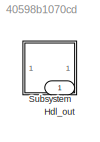
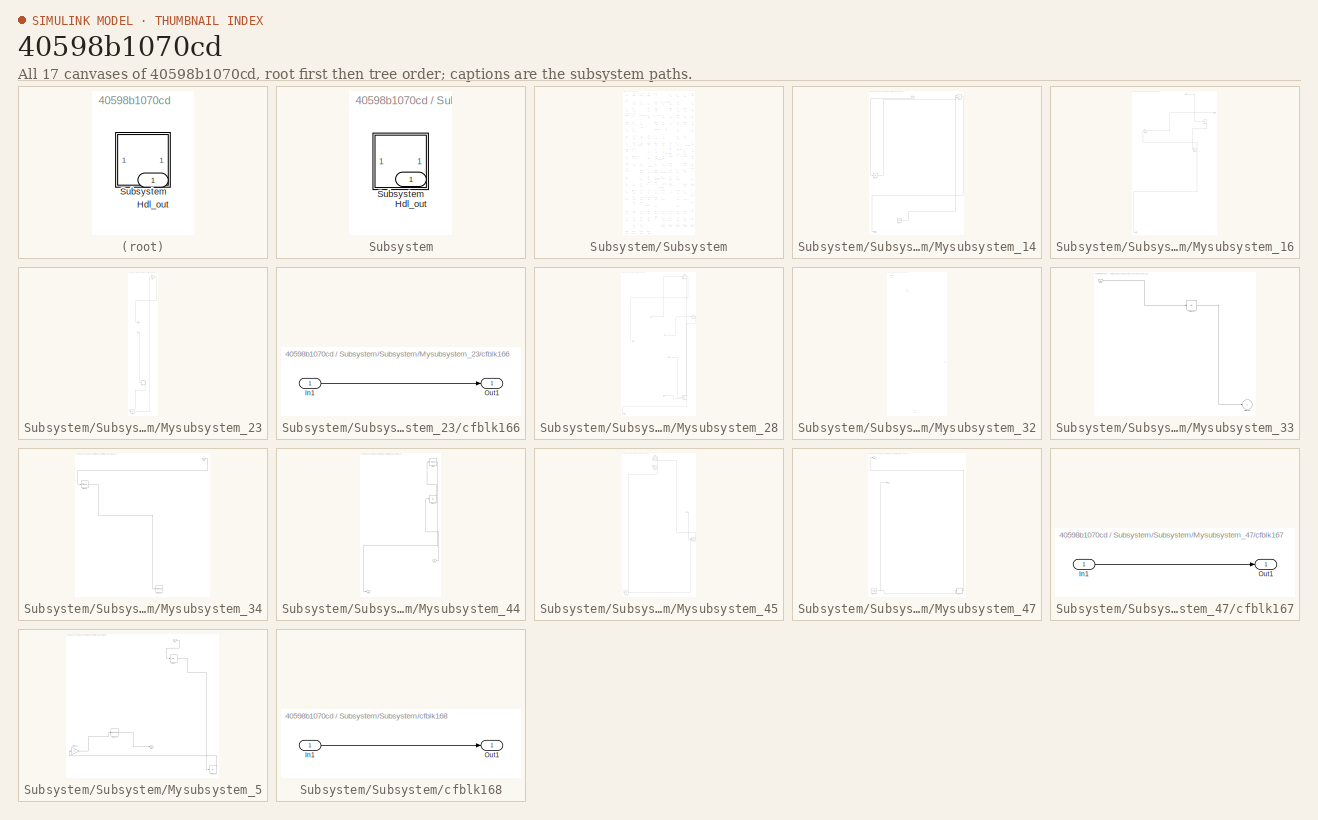
[diagram: thumbnail index - all 17 canvases of the model, root first then tree order]
MODEL slx_40598b1070cd
KIND model
CONFIG AbsTol = auto
CONFIG EnableMultiTasking = off
CONFIG FixedStep = auto
CONFIG MaxStep = auto
CONFIG MinStep = auto
CONFIG RelTol = 1e-3
CONFIG SampleTimeConstraint = Unconstrained
CONFIG SolverName = VariableStepAuto
CONFIG StartTime = 0.0
CONFIG StopTime = 10.0
BLOCK [Outport] Hdl_out
  OutDataTypeStr = uint8
BLOCK [SubSystem] Subsystem
BLOCK [Outport] Subsystem/Hdl_out
  OutDataTypeStr = uint8
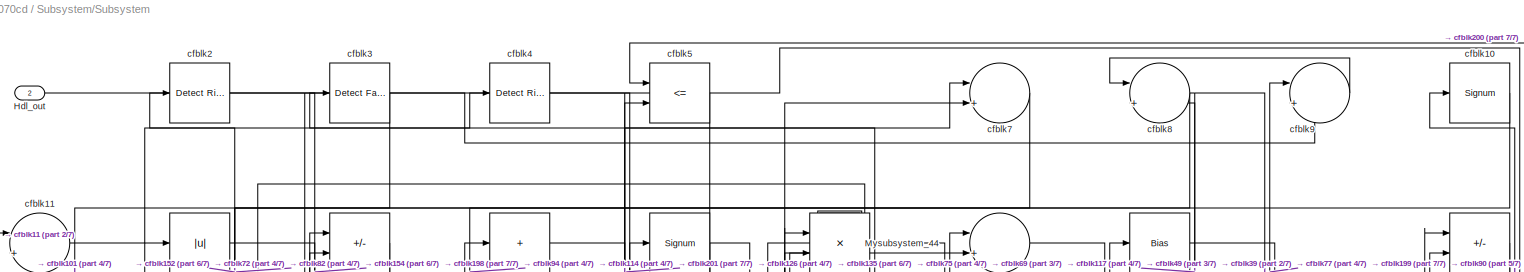
[diagram: Subsystem/Subsystem - part 1/7, full width, top band]
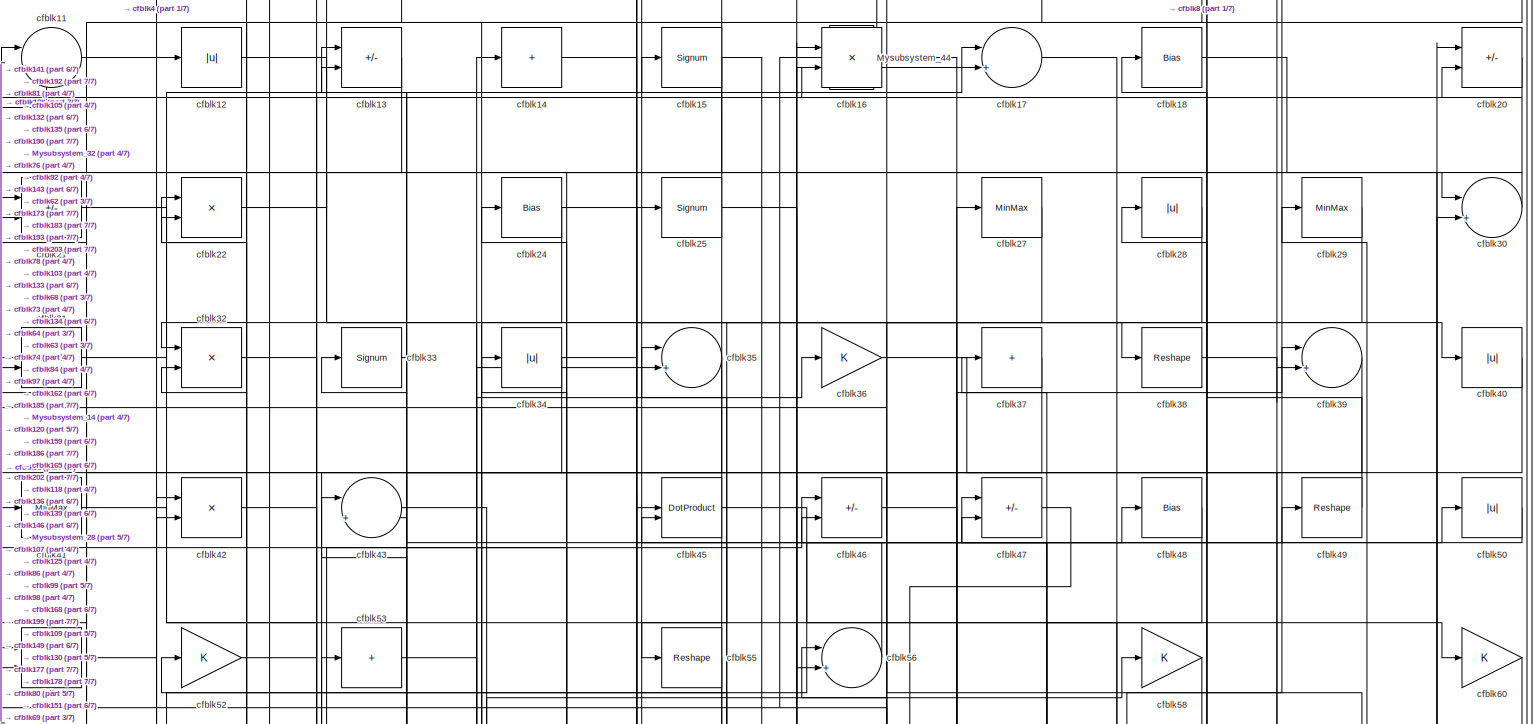
[diagram: Subsystem/Subsystem - part 2/7, full width, top band]
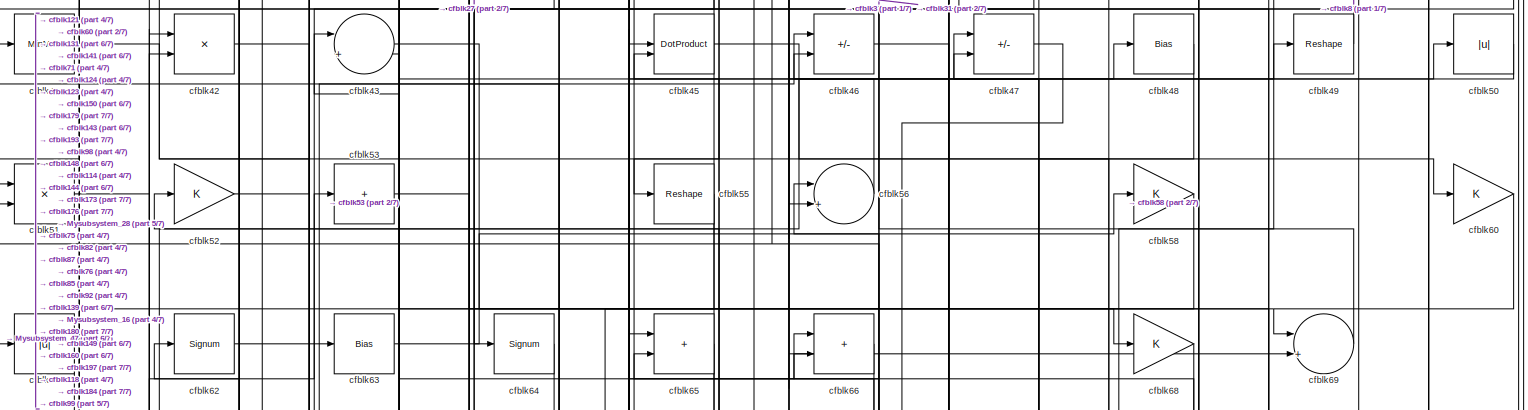
[diagram: Subsystem/Subsystem - part 3/7, full width, top band]
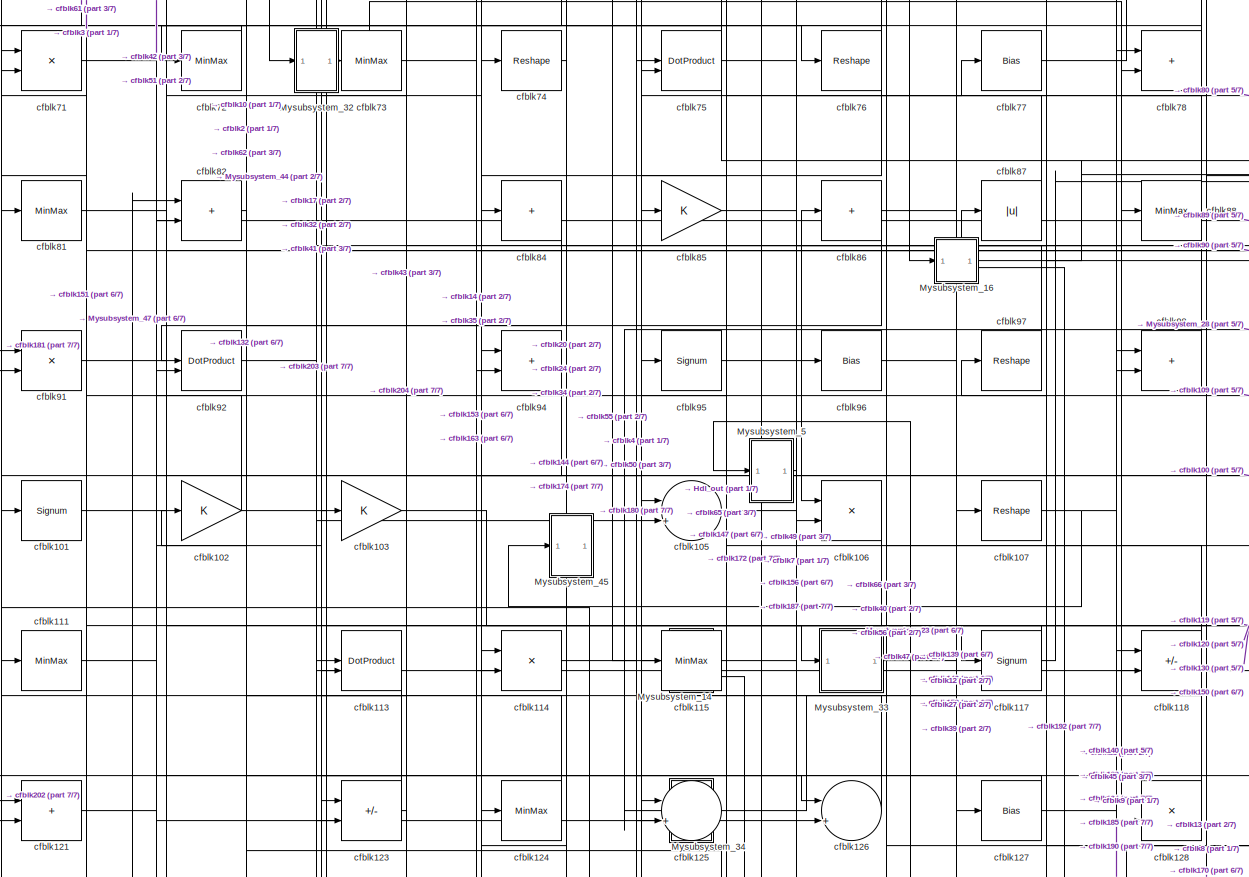
[diagram: Subsystem/Subsystem - part 4/7, full width, middle band]
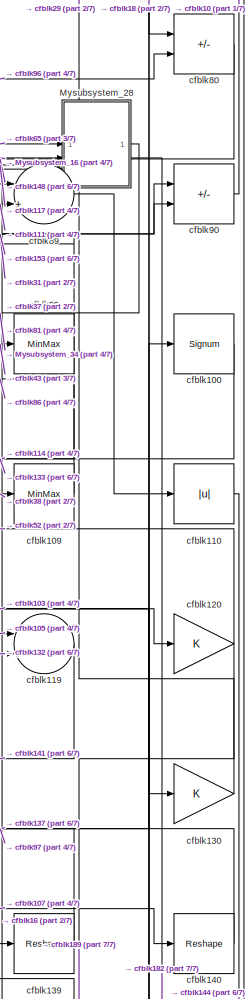
[diagram: Subsystem/Subsystem - part 5/7, middle right region]
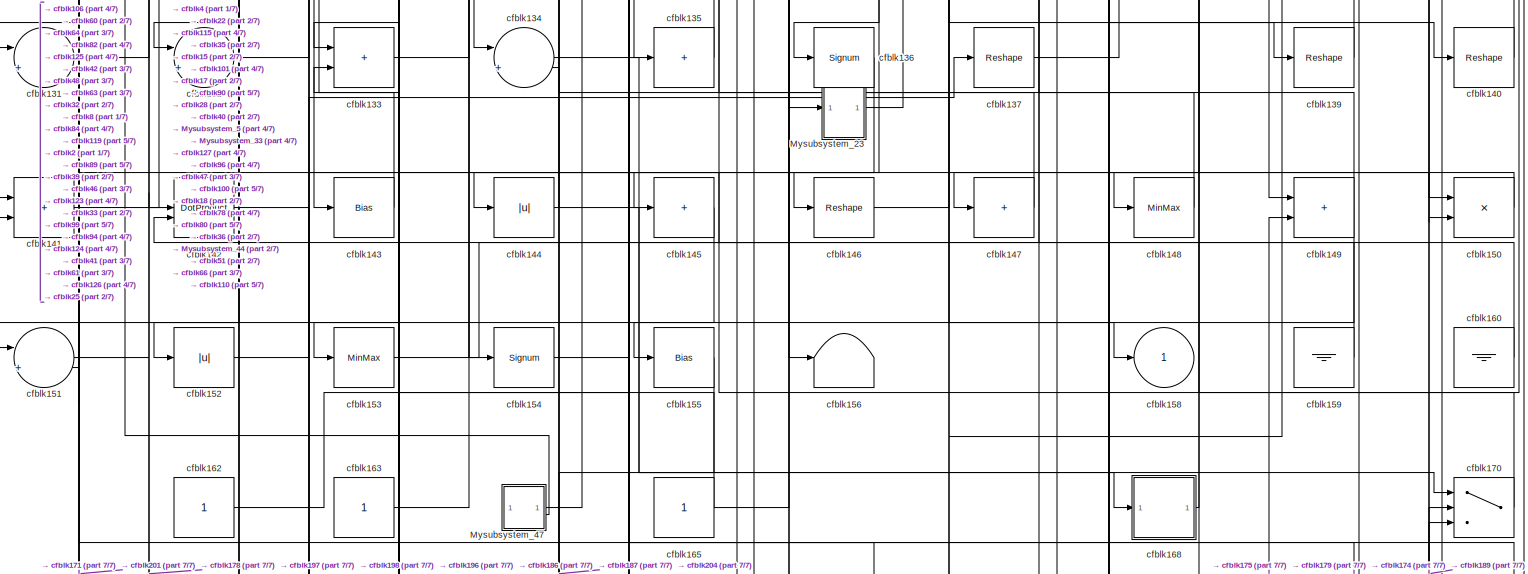
[diagram: Subsystem/Subsystem - part 6/7, full width, bottom band]
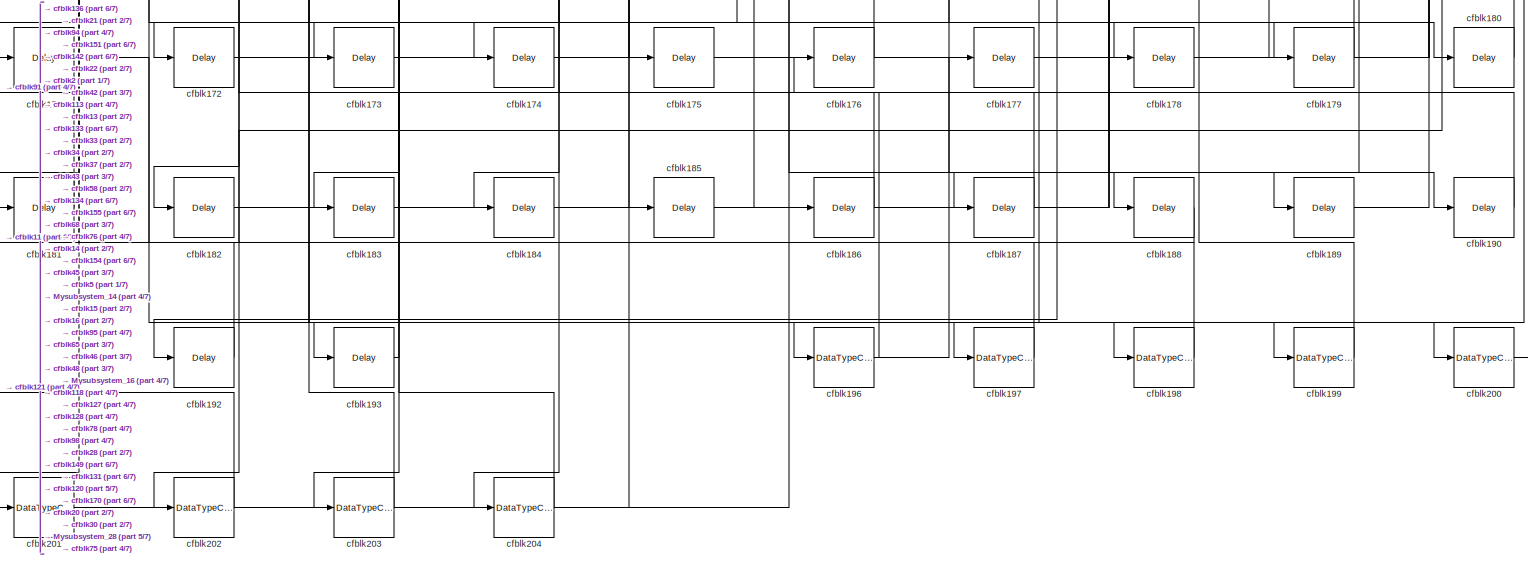
[diagram: Subsystem/Subsystem - part 7/7, full width, bottom band]
BLOCK [SubSystem] Subsystem/Subsystem
BLOCK [Outport] Subsystem/Subsystem/Hdl_out
  OutDataTypeStr = uint8
  Port = 2
BLOCK [SubSystem] Subsystem/Subsystem/Mysubsystem_14
  RTWFcnName = Mysubsystem_14
  RTWFcnNameOpts = User specified
  RTWFileNameOpts = Use function name
  RTWSystemCode = Reusable function
  TreatAsAtomicUnit = on
BLOCK [Inport] Subsystem/Subsystem/Mysubsystem_14/In1
BLOCK [Outport] Subsystem/Subsystem/Mysubsystem_14/Out1
BLOCK [Bias] Subsystem/Subsystem/Mysubsystem_14/cfblk122
  Bias = 0.0
  SaturateOnIntegerOverflow = off
BLOCK [Reference] Subsystem/Subsystem/Mysubsystem_14/cfblk164  REF=hdlsllib/Sources/Counter
Free-Running
  SourceBlock = hdlsllib/Sources/Counter\nFree-Running
  SourceType = Counter Free-Running
BLOCK [Product] Subsystem/Subsystem/Mysubsystem_14/cfblk59
  Inputs = */
  RndMeth = Zero
  SaturateOnIntegerOverflow = on
BLOCK [SubSystem] Subsystem/Subsystem/Mysubsystem_16
  RTWFcnName = Mysubsystem_16
  RTWFcnNameOpts = User specified
  RTWFileNameOpts = Use function name
  RTWSystemCode = Reusable function
  TreatAsAtomicUnit = on
BLOCK [Inport] Subsystem/Subsystem/Mysubsystem_16/In1
BLOCK [Outport] Subsystem/Subsystem/Mysubsystem_16/Out1
BLOCK [Outport] Subsystem/Subsystem/Mysubsystem_16/Out2
  Port = 2
BLOCK [Gain] Subsystem/Subsystem/Mysubsystem_16/cfblk108
BLOCK [Abs] Subsystem/Subsystem/Mysubsystem_16/cfblk79
  SaturateOnIntegerOverflow = off
BLOCK [Gain] Subsystem/Subsystem/Mysubsystem_16/cfblk83
BLOCK [SubSystem] Subsystem/Subsystem/Mysubsystem_23
  RTWFcnName = Mysubsystem_23
  RTWFcnNameOpts = User specified
  RTWFileNameOpts = Use function name
  RTWSystemCode = Reusable function
  TreatAsAtomicUnit = on
BLOCK [Inport] Subsystem/Subsystem/Mysubsystem_23/In1
BLOCK [Outport] Subsystem/Subsystem/Mysubsystem_23/Out1
BLOCK [SubSystem] Subsystem/Subsystem/Mysubsystem_23/cfblk166
  LibrarySourceBlock = hdlsllib/Ports &\nSubsystems/Subsystem
BLOCK [Inport] Subsystem/Subsystem/Mysubsystem_23/cfblk166/In1
BLOCK [Outport] Subsystem/Subsystem/Mysubsystem_23/cfblk166/Out1
BLOCK [Delay] Subsystem/Subsystem/Mysubsystem_23/cfblk195
  InputPortMap = u0
  SampleTime = 1
BLOCK [Gain] Subsystem/Subsystem/Mysubsystem_23/cfblk57
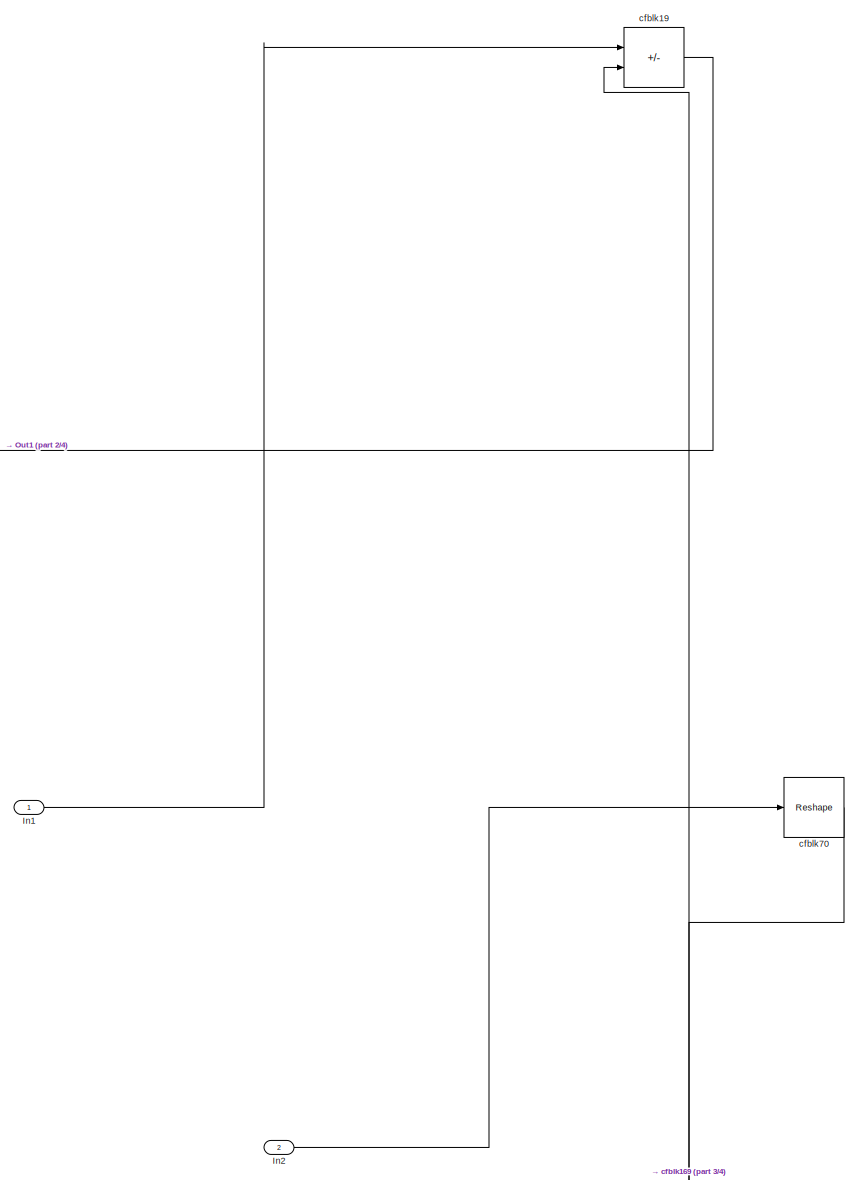
[diagram: Subsystem/Subsystem/Mysubsystem_28 - part 1/4, top right region]
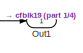
[diagram: Subsystem/Subsystem/Mysubsystem_28 - part 2/4, middle left region]
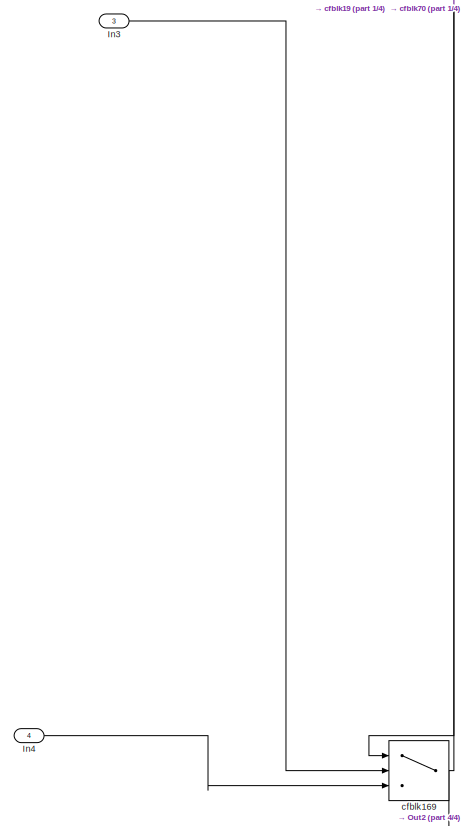
[diagram: Subsystem/Subsystem/Mysubsystem_28 - part 3/4, bottom right region]
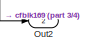
[diagram: Subsystem/Subsystem/Mysubsystem_28 - part 4/4, bottom left region]
BLOCK [SubSystem] Subsystem/Subsystem/Mysubsystem_28
  RTWFcnName = Mysubsystem_28
  RTWFcnNameOpts = User specified
  RTWFileNameOpts = Use function name
  RTWSystemCode = Reusable function
  TreatAsAtomicUnit = on
BLOCK [Inport] Subsystem/Subsystem/Mysubsystem_28/In1
BLOCK [Inport] Subsystem/Subsystem/Mysubsystem_28/In2
  Port = 2
BLOCK [Inport] Subsystem/Subsystem/Mysubsystem_28/In3
  Port = 3
BLOCK [Inport] Subsystem/Subsystem/Mysubsystem_28/In4
  Port = 4
BLOCK [Outport] Subsystem/Subsystem/Mysubsystem_28/Out1
BLOCK [Outport] Subsystem/Subsystem/Mysubsystem_28/Out2
  Port = 2
BLOCK [Switch] Subsystem/Subsystem/Mysubsystem_28/cfblk169
  InputSameDT = off
  SaturateOnIntegerOverflow = off
BLOCK [Sum] Subsystem/Subsystem/Mysubsystem_28/cfblk19
  IconShape = rectangular
  Inputs = +-
BLOCK [Reshape] Subsystem/Subsystem/Mysubsystem_28/cfblk70
BLOCK [SubSystem] Subsystem/Subsystem/Mysubsystem_32
  RTWFcnName = Mysubsystem_32
  RTWFcnNameOpts = User specified
  RTWFileNameOpts = Use function name
  RTWSystemCode = Reusable function
  TreatAsAtomicUnit = on
BLOCK [Inport] Subsystem/Subsystem/Mysubsystem_32/In1
BLOCK [Outport] Subsystem/Subsystem/Mysubsystem_32/Out1
BLOCK [Reference] Subsystem/Subsystem/Mysubsystem_32/cfblk1  REF=hdlsllib/Logic and Bit
Operations/Detect Rise
Positive
  SourceBlock = hdlsllib/Logic and Bit\nOperations/Detect Rise\nPositive
  SourceType = Detect Rise Positive
BLOCK [Delay] Subsystem/Subsystem/Mysubsystem_32/cfblk194
  InputPortMap = u0
  SampleTime = 1
BLOCK [Signum] Subsystem/Subsystem/Mysubsystem_32/cfblk23
BLOCK [SubSystem] Subsystem/Subsystem/Mysubsystem_33
  RTWFcnName = Mysubsystem_33
  RTWFcnNameOpts = User specified
  RTWFileNameOpts = Use function name
  RTWSystemCode = Reusable function
  TreatAsAtomicUnit = on
BLOCK [Inport] Subsystem/Subsystem/Mysubsystem_33/In1
BLOCK [Abs] Subsystem/Subsystem/Mysubsystem_33/cfblk116
  SaturateOnIntegerOverflow = off
BLOCK [Outport] Subsystem/Subsystem/Mysubsystem_33/cfblk158
  VectorParamsAs1DForOutWhenUnconnected = off
BLOCK [SubSystem] Subsystem/Subsystem/Mysubsystem_34
  RTWFcnName = Mysubsystem_34
  RTWFcnNameOpts = User specified
  RTWFileNameOpts = Use function name
  RTWSystemCode = Reusable function
  TreatAsAtomicUnit = on
BLOCK [Inport] Subsystem/Subsystem/Mysubsystem_34/In1
BLOCK [ToWorkspace] Subsystem/Subsystem/Mysubsystem_34/cfblk157
  MaxDataPoints = inf
  SampleTime = -1
  SaveFormat = Timeseries
  VariableName = simout
BLOCK [MinMax] Subsystem/Subsystem/Mysubsystem_34/cfblk93
BLOCK [SubSystem] Subsystem/Subsystem/Mysubsystem_44
  RTWFcnName = Mysubsystem_44
  RTWFcnNameOpts = User specified
  RTWFileNameOpts = Use function name
  RTWSystemCode = Reusable function
  TreatAsAtomicUnit = on
BLOCK [Inport] Subsystem/Subsystem/Mysubsystem_44/In1
BLOCK [Outport] Subsystem/Subsystem/Mysubsystem_44/Out1
BLOCK [Abs] Subsystem/Subsystem/Mysubsystem_44/cfblk26
  SaturateOnIntegerOverflow = off
BLOCK [Signum] Subsystem/Subsystem/Mysubsystem_44/cfblk6
BLOCK [SubSystem] Subsystem/Subsystem/Mysubsystem_45
  RTWFcnName = Mysubsystem_45
  RTWFcnNameOpts = User specified
  RTWFileNameOpts = Use function name
  RTWSystemCode = Reusable function
  TreatAsAtomicUnit = on
BLOCK [Inport] Subsystem/Subsystem/Mysubsystem_45/In1
BLOCK [DotProduct] Subsystem/Subsystem/Mysubsystem_45/cfblk138
  OutDataTypeStr = Inherit: Inherit via internal rule
BLOCK [Delay] Subsystem/Subsystem/Mysubsystem_45/cfblk191
  InputPortMap = u0
  SampleTime = 1
BLOCK [Reshape] Subsystem/Subsystem/Mysubsystem_45/cfblk44
BLOCK [Reshape] Subsystem/Subsystem/Mysubsystem_45/cfblk54
BLOCK [SubSystem] Subsystem/Subsystem/Mysubsystem_47
  RTWFcnName = Mysubsystem_47
  RTWFcnNameOpts = User specified
  RTWFileNameOpts = Use function name
  RTWSystemCode = Reusable function
  TreatAsAtomicUnit = on
BLOCK [Outport] Subsystem/Subsystem/Mysubsystem_47/Out1
BLOCK [Reference] Subsystem/Subsystem/Mysubsystem_47/cfblk161  REF=hdlsllib/Sources/Counter
Limited
  SourceBlock = hdlsllib/Sources/Counter\nLimited
  SourceType = Counter Limited
BLOCK [SubSystem] Subsystem/Subsystem/Mysubsystem_47/cfblk167
  LibrarySourceBlock = hdlsllib/Ports &\nSubsystems/Subsystem
BLOCK [Inport] Subsystem/Subsystem/Mysubsystem_47/cfblk167/In1
BLOCK [Outport] Subsystem/Subsystem/Mysubsystem_47/cfblk167/Out1
BLOCK [Outport] Subsystem/Subsystem/Mysubsystem_47/y
  Port = 2
BLOCK [SubSystem] Subsystem/Subsystem/Mysubsystem_5
  RTWFcnName = Mysubsystem_5
  RTWFcnNameOpts = User specified
  RTWFileNameOpts = Use function name
  RTWSystemCode = Reusable function
  TreatAsAtomicUnit = on
BLOCK [Inport] Subsystem/Subsystem/Mysubsystem_5/In1
BLOCK [Outport] Subsystem/Subsystem/Mysubsystem_5/Out1
BLOCK [Reshape] Subsystem/Subsystem/Mysubsystem_5/cfblk104
BLOCK [Gain] Subsystem/Subsystem/Mysubsystem_5/cfblk112
BLOCK [Abs] Subsystem/Subsystem/Mysubsystem_5/cfblk129
  SaturateOnIntegerOverflow = off
BLOCK [Abs] Subsystem/Subsystem/Mysubsystem_5/cfblk67
  SaturateOnIntegerOverflow = off
BLOCK [Signum] Subsystem/Subsystem/cfblk10
BLOCK [Signum] Subsystem/Subsystem/cfblk100
BLOCK [Signum] Subsystem/Subsystem/cfblk101
BLOCK [Gain] Subsystem/Subsystem/cfblk102
  OutDataTypeStr = uint8
BLOCK [Gain] Subsystem/Subsystem/cfblk103
  OutDataTypeStr = uint8
BLOCK [Sum] Subsystem/Subsystem/cfblk105
  Inputs = |++
  OutDataTypeStr = uint8
BLOCK [Product] Subsystem/Subsystem/cfblk106
  Inputs = */
  OutDataTypeStr = uint8
  RndMeth = Zero
  SaturateOnIntegerOverflow = on
BLOCK [Reshape] Subsystem/Subsystem/cfblk107
BLOCK [MinMax] Subsystem/Subsystem/cfblk109
  OutDataTypeStr = uint8
BLOCK [Sum] Subsystem/Subsystem/cfblk11
  Inputs = |++
  OutDataTypeStr = uint8
BLOCK [Abs] Subsystem/Subsystem/cfblk110
  OutDataTypeStr = uint8
  SaturateOnIntegerOverflow = off
BLOCK [MinMax] Subsystem/Subsystem/cfblk111
  OutDataTypeStr = uint8
BLOCK [DotProduct] Subsystem/Subsystem/cfblk113
  OutDataTypeStr = uint8
BLOCK [Product] Subsystem/Subsystem/cfblk114
  Inputs = */
  OutDataTypeStr = uint8
  RndMeth = Zero
  SaturateOnIntegerOverflow = on
BLOCK [MinMax] Subsystem/Subsystem/cfblk115
  OutDataTypeStr = uint8
BLOCK [Signum] Subsystem/Subsystem/cfblk117
BLOCK [Sum] Subsystem/Subsystem/cfblk118
  IconShape = rectangular
  Inputs = +-
  OutDataTypeStr = uint8
BLOCK [Sum] Subsystem/Subsystem/cfblk119
  Inputs = |++
  OutDataTypeStr = uint8
BLOCK [Abs] Subsystem/Subsystem/cfblk12
  OutDataTypeStr = uint8
  SaturateOnIntegerOverflow = off
BLOCK [Gain] Subsystem/Subsystem/cfblk120
  OutDataTypeStr = uint8
BLOCK [Sum] Subsystem/Subsystem/cfblk121
  IconShape = rectangular
  OutDataTypeStr = uint8
BLOCK [Sum] Subsystem/Subsystem/cfblk123
  IconShape = rectangular
  Inputs = +-
  OutDataTypeStr = uint8
BLOCK [MinMax] Subsystem/Subsystem/cfblk124
  OutDataTypeStr = uint8
BLOCK [Sum] Subsystem/Subsystem/cfblk125
  Inputs = |++
  OutDataTypeStr = uint8
BLOCK [Sum] Subsystem/Subsystem/cfblk126
  Inputs = |++
  OutDataTypeStr = uint8
BLOCK [Bias] Subsystem/Subsystem/cfblk127
  Bias = 0.0
  SaturateOnIntegerOverflow = off
BLOCK [Product] Subsystem/Subsystem/cfblk128
  Inputs = */
  OutDataTypeStr = uint8
  RndMeth = Zero
  SaturateOnIntegerOverflow = on
BLOCK [Sum] Subsystem/Subsystem/cfblk13
  IconShape = rectangular
  Inputs = +-
  OutDataTypeStr = uint8
BLOCK [Gain] Subsystem/Subsystem/cfblk130
  OutDataTypeStr = uint8
BLOCK [Sum] Subsystem/Subsystem/cfblk131
  Inputs = |++
  OutDataTypeStr = uint8
BLOCK [Sum] Subsystem/Subsystem/cfblk132
  Inputs = |++
  OutDataTypeStr = uint8
BLOCK [Sum] Subsystem/Subsystem/cfblk133
  IconShape = rectangular
  OutDataTypeStr = uint8
BLOCK [Sum] Subsystem/Subsystem/cfblk134
  Inputs = |++
  OutDataTypeStr = uint8
BLOCK [Sum] Subsystem/Subsystem/cfblk135
  IconShape = rectangular
  Inputs = +
  OutDataTypeStr = uint8
BLOCK [Signum] Subsystem/Subsystem/cfblk136
BLOCK [Reshape] Subsystem/Subsystem/cfblk137
BLOCK [Reshape] Subsystem/Subsystem/cfblk139
BLOCK [Sum] Subsystem/Subsystem/cfblk14
  IconShape = rectangular
  Inputs = +
  OutDataTypeStr = uint8
BLOCK [Reshape] Subsystem/Subsystem/cfblk140
BLOCK [Sum] Subsystem/Subsystem/cfblk141
  IconShape = rectangular
  OutDataTypeStr = uint8
BLOCK [DotProduct] Subsystem/Subsystem/cfblk142
  OutDataTypeStr = uint8
BLOCK [Bias] Subsystem/Subsystem/cfblk143
  Bias = 0.0
  SaturateOnIntegerOverflow = off
BLOCK [Abs] Subsystem/Subsystem/cfblk144
  OutDataTypeStr = uint8
  SaturateOnIntegerOverflow = off
BLOCK [Sum] Subsystem/Subsystem/cfblk145
  IconShape = rectangular
  Inputs = +
  OutDataTypeStr = uint8
BLOCK [Reshape] Subsystem/Subsystem/cfblk146
BLOCK [Sum] Subsystem/Subsystem/cfblk147
  IconShape = rectangular
  Inputs = +
  OutDataTypeStr = uint8
BLOCK [MinMax] Subsystem/Subsystem/cfblk148
  OutDataTypeStr = uint8
BLOCK [Sum] Subsystem/Subsystem/cfblk149
  IconShape = rectangular
  OutDataTypeStr = uint8
BLOCK [Signum] Subsystem/Subsystem/cfblk15
BLOCK [Product] Subsystem/Subsystem/cfblk150
  Inputs = */
  OutDataTypeStr = uint8
  RndMeth = Zero
  SaturateOnIntegerOverflow = on
BLOCK [Sum] Subsystem/Subsystem/cfblk151
  Inputs = |++
  OutDataTypeStr = uint8
BLOCK [Abs] Subsystem/Subsystem/cfblk152
  OutDataTypeStr = uint8
  SaturateOnIntegerOverflow = off
BLOCK [MinMax] Subsystem/Subsystem/cfblk153
  OutDataTypeStr = uint8
BLOCK [Signum] Subsystem/Subsystem/cfblk154
BLOCK [Bias] Subsystem/Subsystem/cfblk155
  Bias = 0.0
  SaturateOnIntegerOverflow = off
BLOCK [Terminator] Subsystem/Subsystem/cfblk156
BLOCK [Outport] Subsystem/Subsystem/cfblk158
  OutDataTypeStr = uint8
  VectorParamsAs1DForOutWhenUnconnected = off
BLOCK [Ground] Subsystem/Subsystem/cfblk159
BLOCK [Product] Subsystem/Subsystem/cfblk16
  Inputs = */
  OutDataTypeStr = uint8
  RndMeth = Zero
  SaturateOnIntegerOverflow = on
BLOCK [Ground] Subsystem/Subsystem/cfblk160
BLOCK [Constant] Subsystem/Subsystem/cfblk162
  OutDataTypeStr = uint8
  SampleTime = -1
BLOCK [Constant] Subsystem/Subsystem/cfblk163
  OutDataTypeStr = uint8
  SampleTime = -1
BLOCK [Constant] Subsystem/Subsystem/cfblk165
  OutDataTypeStr = uint8
  SampleTime = -1
BLOCK [SubSystem] Subsystem/Subsystem/cfblk168
  LibrarySourceBlock = hdlsllib/Ports &\nSubsystems/Subsystem
BLOCK [Inport] Subsystem/Subsystem/cfblk168/In1
BLOCK [Outport] Subsystem/Subsystem/cfblk168/Out1
BLOCK [Sum] Subsystem/Subsystem/cfblk17
  Inputs = |++
  OutDataTypeStr = uint8
BLOCK [Switch] Subsystem/Subsystem/cfblk170
  InputSameDT = off
  OutDataTypeStr = uint8
  SaturateOnIntegerOverflow = off
BLOCK [Delay] Subsystem/Subsystem/cfblk171
  InputPortMap = u0
  SampleTime = 1
BLOCK [Delay] Subsystem/Subsystem/cfblk172
  InputPortMap = u0
  SampleTime = 1
BLOCK [Delay] Subsystem/Subsystem/cfblk173
  InputPortMap = u0
  SampleTime = 1
BLOCK [Delay] Subsystem/Subsystem/cfblk174
  InputPortMap = u0
  SampleTime = 1
BLOCK [Delay] Subsystem/Subsystem/cfblk175
  InputPortMap = u0
  SampleTime = 1
BLOCK [Delay] Subsystem/Subsystem/cfblk176
  InputPortMap = u0
  SampleTime = 1
BLOCK [Delay] Subsystem/Subsystem/cfblk177
  InputPortMap = u0
  SampleTime = 1
BLOCK [Delay] Subsystem/Subsystem/cfblk178
  InputPortMap = u0
  SampleTime = 1
BLOCK [Delay] Subsystem/Subsystem/cfblk179
  InputPortMap = u0
  SampleTime = 1
BLOCK [Bias] Subsystem/Subsystem/cfblk18
  Bias = 0.0
  SaturateOnIntegerOverflow = off
BLOCK [Delay] Subsystem/Subsystem/cfblk180
  InputPortMap = u0
  SampleTime = 1
BLOCK [Delay] Subsystem/Subsystem/cfblk181
  InputPortMap = u0
  SampleTime = 1
BLOCK [Delay] Subsystem/Subsystem/cfblk182
  InputPortMap = u0
  SampleTime = 1
BLOCK [Delay] Subsystem/Subsystem/cfblk183
  InputPortMap = u0
  SampleTime = 1
BLOCK [Delay] Subsystem/Subsystem/cfblk184
  InputPortMap = u0
  SampleTime = 1
BLOCK [Delay] Subsystem/Subsystem/cfblk185
  InputPortMap = u0
  SampleTime = 1
BLOCK [Delay] Subsystem/Subsystem/cfblk186
  InputPortMap = u0
  SampleTime = 1
BLOCK [Delay] Subsystem/Subsystem/cfblk187
  InputPortMap = u0
  SampleTime = 1
BLOCK [Delay] Subsystem/Subsystem/cfblk188
  InputPortMap = u0
  SampleTime = 1
BLOCK [Delay] Subsystem/Subsystem/cfblk189
  InputPortMap = u0
  SampleTime = 1
BLOCK [Delay] Subsystem/Subsystem/cfblk190
  InputPortMap = u0
  SampleTime = 1
BLOCK [Delay] Subsystem/Subsystem/cfblk192
  InputPortMap = u0
  SampleTime = 1
BLOCK [Delay] Subsystem/Subsystem/cfblk193
  InputPortMap = u0
  SampleTime = 1
BLOCK [DataTypeConversion] Subsystem/Subsystem/cfblk196
  OutDataTypeStr = uint8
  RndMeth = Floor
  SaturateOnIntegerOverflow = off
BLOCK [DataTypeConversion] Subsystem/Subsystem/cfblk197
  OutDataTypeStr = uint8
  RndMeth = Floor
  SaturateOnIntegerOverflow = off
BLOCK [DataTypeConversion] Subsystem/Subsystem/cfblk198
  OutDataTypeStr = uint8
  RndMeth = Floor
  SaturateOnIntegerOverflow = off
BLOCK [DataTypeConversion] Subsystem/Subsystem/cfblk199
  OutDataTypeStr = uint8
  RndMeth = Floor
  SaturateOnIntegerOverflow = off
BLOCK [Reference] Subsystem/Subsystem/cfblk2  REF=hdlsllib/Logic and Bit
Operations/Detect Rise
Positive
  SourceBlock = hdlsllib/Logic and Bit\nOperations/Detect Rise\nPositive
  SourceType = Detect Rise Positive
BLOCK [Sum] Subsystem/Subsystem/cfblk20
  IconShape = rectangular
  Inputs = +-
  OutDataTypeStr = uint8
BLOCK [DataTypeConversion] Subsystem/Subsystem/cfblk200
  OutDataTypeStr = uint8
  RndMeth = Floor
  SaturateOnIntegerOverflow = off
BLOCK [DataTypeConversion] Subsystem/Subsystem/cfblk201
  OutDataTypeStr = uint8
  RndMeth = Floor
  SaturateOnIntegerOverflow = off
BLOCK [DataTypeConversion] Subsystem/Subsystem/cfblk202
  OutDataTypeStr = uint8
  RndMeth = Floor
  SaturateOnIntegerOverflow = off
BLOCK [DataTypeConversion] Subsystem/Subsystem/cfblk203
  OutDataTypeStr = uint8
  RndMeth = Floor
  SaturateOnIntegerOverflow = off
BLOCK [DataTypeConversion] Subsystem/Subsystem/cfblk204
  OutDataTypeStr = uint8
  RndMeth = Floor
  SaturateOnIntegerOverflow = off
BLOCK [Sum] Subsystem/Subsystem/cfblk21
  IconShape = rectangular
  Inputs = +-
  OutDataTypeStr = uint8
BLOCK [Product] Subsystem/Subsystem/cfblk22
  Inputs = */
  OutDataTypeStr = uint8
  RndMeth = Zero
  SaturateOnIntegerOverflow = on
BLOCK [Bias] Subsystem/Subsystem/cfblk24
  Bias = 0.0
  SaturateOnIntegerOverflow = off
BLOCK [Signum] Subsystem/Subsystem/cfblk25
BLOCK [MinMax] Subsystem/Subsystem/cfblk27
  OutDataTypeStr = uint8
BLOCK [Abs] Subsystem/Subsystem/cfblk28
  OutDataTypeStr = uint8
  SaturateOnIntegerOverflow = off
BLOCK [MinMax] Subsystem/Subsystem/cfblk29
  OutDataTypeStr = uint8
BLOCK [Reference] Subsystem/Subsystem/cfblk3  REF=hdlsllib/Logic and Bit
Operations/Detect Fall
Negative
  SourceBlock = hdlsllib/Logic and Bit\nOperations/Detect Fall\nNegative
  SourceType = Detect Fall Negative
BLOCK [Sum] Subsystem/Subsystem/cfblk30
  Inputs = |++
  OutDataTypeStr = uint8
BLOCK [DotProduct] Subsystem/Subsystem/cfblk31
  OutDataTypeStr = uint8
BLOCK [Product] Subsystem/Subsystem/cfblk32
  Inputs = */
  OutDataTypeStr = uint8
  RndMeth = Zero
  SaturateOnIntegerOverflow = on
BLOCK [Signum] Subsystem/Subsystem/cfblk33
BLOCK [Abs] Subsystem/Subsystem/cfblk34
  OutDataTypeStr = uint8
  SaturateOnIntegerOverflow = off
BLOCK [Sum] Subsystem/Subsystem/cfblk35
  Inputs = |++
  OutDataTypeStr = uint8
BLOCK [Gain] Subsystem/Subsystem/cfblk36
  OutDataTypeStr = uint8
BLOCK [Sum] Subsystem/Subsystem/cfblk37
  IconShape = rectangular
  Inputs = +
  OutDataTypeStr = uint8
BLOCK [Reshape] Subsystem/Subsystem/cfblk38
BLOCK [Sum] Subsystem/Subsystem/cfblk39
  Inputs = |++
  OutDataTypeStr = uint8
BLOCK [Reference] Subsystem/Subsystem/cfblk4  REF=hdlsllib/Logic and Bit
Operations/Detect Rise
Positive
  SourceBlock = hdlsllib/Logic and Bit\nOperations/Detect Rise\nPositive
  SourceType = Detect Rise Positive
BLOCK [Abs] Subsystem/Subsystem/cfblk40
  OutDataTypeStr = uint8
  SaturateOnIntegerOverflow = off
BLOCK [MinMax] Subsystem/Subsystem/cfblk41
  OutDataTypeStr = uint8
BLOCK [Product] Subsystem/Subsystem/cfblk42
  Inputs = */
  OutDataTypeStr = uint8
  RndMeth = Zero
  SaturateOnIntegerOverflow = on
BLOCK [Sum] Subsystem/Subsystem/cfblk43
  Inputs = |++
  OutDataTypeStr = uint8
BLOCK [DotProduct] Subsystem/Subsystem/cfblk45
  OutDataTypeStr = uint8
BLOCK [Sum] Subsystem/Subsystem/cfblk46
  IconShape = rectangular
  Inputs = +-
  OutDataTypeStr = uint8
BLOCK [Sum] Subsystem/Subsystem/cfblk47
  IconShape = rectangular
  Inputs = +-
  OutDataTypeStr = uint8
BLOCK [Bias] Subsystem/Subsystem/cfblk48
  Bias = 0.0
  SaturateOnIntegerOverflow = off
BLOCK [Reshape] Subsystem/Subsystem/cfblk49
BLOCK [RelationalOperator] Subsystem/Subsystem/cfblk5
  InputSameDT = off
  Operator = <=
  OutDataTypeStr = boolean
BLOCK [Abs] Subsystem/Subsystem/cfblk50
  OutDataTypeStr = uint8
  SaturateOnIntegerOverflow = off
BLOCK [Product] Subsystem/Subsystem/cfblk51
  Inputs = */
  OutDataTypeStr = uint8
  RndMeth = Zero
  SaturateOnIntegerOverflow = on
BLOCK [Gain] Subsystem/Subsystem/cfblk52
  OutDataTypeStr = uint8
BLOCK [Sum] Subsystem/Subsystem/cfblk53
  IconShape = rectangular
  Inputs = +
  OutDataTypeStr = uint8
BLOCK [Reshape] Subsystem/Subsystem/cfblk55
BLOCK [Sum] Subsystem/Subsystem/cfblk56
  Inputs = |++
  OutDataTypeStr = uint8
BLOCK [Gain] Subsystem/Subsystem/cfblk58
  OutDataTypeStr = uint8
BLOCK [Gain] Subsystem/Subsystem/cfblk60
  OutDataTypeStr = uint8
BLOCK [Abs] Subsystem/Subsystem/cfblk61
  OutDataTypeStr = uint8
  SaturateOnIntegerOverflow = off
BLOCK [Signum] Subsystem/Subsystem/cfblk62
BLOCK [Bias] Subsystem/Subsystem/cfblk63
  Bias = 0.0
  SaturateOnIntegerOverflow = off
BLOCK [Signum] Subsystem/Subsystem/cfblk64
BLOCK [Sum] Subsystem/Subsystem/cfblk65
  IconShape = rectangular
  OutDataTypeStr = uint8
BLOCK [Sum] Subsystem/Subsystem/cfblk66
  IconShape = rectangular
  OutDataTypeStr = uint8
BLOCK [Gain] Subsystem/Subsystem/cfblk68
  OutDataTypeStr = uint8
BLOCK [Sum] Subsystem/Subsystem/cfblk69
  Inputs = |++
  OutDataTypeStr = uint8
BLOCK [Sum] Subsystem/Subsystem/cfblk7
  Inputs = |++
  OutDataTypeStr = uint8
BLOCK [Product] Subsystem/Subsystem/cfblk71
  Inputs = */
  OutDataTypeStr = uint8
  RndMeth = Zero
  SaturateOnIntegerOverflow = on
BLOCK [MinMax] Subsystem/Subsystem/cfblk72
  OutDataTypeStr = uint8
BLOCK [MinMax] Subsystem/Subsystem/cfblk73
  OutDataTypeStr = uint8
BLOCK [Reshape] Subsystem/Subsystem/cfblk74
BLOCK [DotProduct] Subsystem/Subsystem/cfblk75
  OutDataTypeStr = uint8
BLOCK [Reshape] Subsystem/Subsystem/cfblk76
BLOCK [Bias] Subsystem/Subsystem/cfblk77
  Bias = 0.0
  SaturateOnIntegerOverflow = off
BLOCK [Sum] Subsystem/Subsystem/cfblk78
  IconShape = rectangular
  OutDataTypeStr = uint8
BLOCK [Sum] Subsystem/Subsystem/cfblk8
  Inputs = |++
  OutDataTypeStr = uint8
BLOCK [Sum] Subsystem/Subsystem/cfblk80
  IconShape = rectangular
  Inputs = +-
  OutDataTypeStr = uint8
BLOCK [MinMax] Subsystem/Subsystem/cfblk81
  OutDataTypeStr = uint8
BLOCK [Sum] Subsystem/Subsystem/cfblk82
  IconShape = rectangular
  OutDataTypeStr = uint8
BLOCK [Sum] Subsystem/Subsystem/cfblk84
  IconShape = rectangular
  Inputs = +
  OutDataTypeStr = uint8
BLOCK [Gain] Subsystem/Subsystem/cfblk85
  OutDataTypeStr = uint8
BLOCK [Sum] Subsystem/Subsystem/cfblk86
  IconShape = rectangular
  Inputs = +
  OutDataTypeStr = uint8
BLOCK [Abs] Subsystem/Subsystem/cfblk87
  OutDataTypeStr = uint8
  SaturateOnIntegerOverflow = off
BLOCK [MinMax] Subsystem/Subsystem/cfblk88
  OutDataTypeStr = uint8
BLOCK [Sum] Subsystem/Subsystem/cfblk89
  Inputs = |++
  OutDataTypeStr = uint8
BLOCK [Sum] Subsystem/Subsystem/cfblk9
  Inputs = |++
  OutDataTypeStr = uint8
BLOCK [Sum] Subsystem/Subsystem/cfblk90
  IconShape = rectangular
  Inputs = +-
  OutDataTypeStr = uint8
BLOCK [Product] Subsystem/Subsystem/cfblk91
  Inputs = */
  OutDataTypeStr = uint8
  RndMeth = Zero
  SaturateOnIntegerOverflow = on
BLOCK [DotProduct] Subsystem/Subsystem/cfblk92
  OutDataTypeStr = uint8
BLOCK [Sum] Subsystem/Subsystem/cfblk94
  IconShape = rectangular
  OutDataTypeStr = uint8
BLOCK [Signum] Subsystem/Subsystem/cfblk95
BLOCK [Bias] Subsystem/Subsystem/cfblk96
  Bias = 0.0
  SaturateOnIntegerOverflow = off
BLOCK [Reshape] Subsystem/Subsystem/cfblk97
BLOCK [Sum] Subsystem/Subsystem/cfblk98
  IconShape = rectangular
  OutDataTypeStr = uint8
BLOCK [MinMax] Subsystem/Subsystem/cfblk99
  OutDataTypeStr = uint8
LINE Subsystem/Subsystem/Mysubsystem_14/In1:1 -> Subsystem/Subsystem/Mysubsystem_14/cfblk122:1
LINE Subsystem/Subsystem/Mysubsystem_14/cfblk122:1 -> Subsystem/Subsystem/Mysubsystem_14/cfblk59:2
LINE Subsystem/Subsystem/Mysubsystem_14/cfblk164:1 -> Subsystem/Subsystem/Mysubsystem_14/cfblk59:1
LINE Subsystem/Subsystem/Mysubsystem_14/cfblk59:1 -> Subsystem/Subsystem/Mysubsystem_14/Out1:1
LINE Subsystem/Subsystem/Mysubsystem_14:1 -> Subsystem/Subsystem/cfblk172:1
LINE Subsystem/Subsystem/Mysubsystem_16/In1:1 -> Subsystem/Subsystem/Mysubsystem_16/cfblk79:1
NET Subsystem/Subsystem/Mysubsystem_16/cfblk108:1 -> Subsystem/Subsystem/Mysubsystem_16/Out2:1, Subsystem/Subsystem/Mysubsystem_16/cfblk83:1
LINE Subsystem/Subsystem/Mysubsystem_16/cfblk79:1 -> Subsystem/Subsystem/Mysubsystem_16/cfblk108:1
LINE Subsystem/Subsystem/Mysubsystem_16/cfblk83:1 -> Subsystem/Subsystem/Mysubsystem_16/Out1:1
LINE Subsystem/Subsystem/Mysubsystem_16:1 -> Subsystem/Subsystem/Mysubsystem_28:2
LINE Subsystem/Subsystem/Mysubsystem_16:2 -> Subsystem/Subsystem/cfblk192:1
LINE Subsystem/Subsystem/Mysubsystem_23/In1:1 -> Subsystem/Subsystem/Mysubsystem_23/cfblk166:1
LINE Subsystem/Subsystem/Mysubsystem_23/cfblk166/In1:1 -> Subsystem/Subsystem/Mysubsystem_23/cfblk166/Out1:1
LINE Subsystem/Subsystem/Mysubsystem_23/cfblk166:1 -> Subsystem/Subsystem/Mysubsystem_23/cfblk195:1
LINE Subsystem/Subsystem/Mysubsystem_23/cfblk195:1 -> Subsystem/Subsystem/Mysubsystem_23/cfblk57:1
LINE Subsystem/Subsystem/Mysubsystem_23/cfblk57:1 -> Subsystem/Subsystem/Mysubsystem_23/Out1:1
LINE Subsystem/Subsystem/Mysubsystem_23:1 -> Subsystem/Subsystem/Mysubsystem_5:1
LINE Subsystem/Subsystem/Mysubsystem_28/In1:1 -> Subsystem/Subsystem/Mysubsystem_28/cfblk19:1
LINE Subsystem/Subsystem/Mysubsystem_28/In2:1 -> Subsystem/Subsystem/Mysubsystem_28/cfblk70:1
LINE Subsystem/Subsystem/Mysubsystem_28/In3:1 -> Subsystem/Subsystem/Mysubsystem_28/cfblk169:2
LINE Subsystem/Subsystem/Mysubsystem_28/In4:1 -> Subsystem/Subsystem/Mysubsystem_28/cfblk169:3
NET Subsystem/Subsystem/Mysubsystem_28/cfblk169:1 -> Subsystem/Subsystem/Mysubsystem_28/Out2:1, Subsystem/Subsystem/Mysubsystem_28/cfblk19:2
LINE Subsystem/Subsystem/Mysubsystem_28/cfblk19:1 -> Subsystem/Subsystem/Mysubsystem_28/Out1:1
LINE Subsystem/Subsystem/Mysubsystem_28/cfblk70:1 -> Subsystem/Subsystem/Mysubsystem_28/cfblk169:1
LINE Subsystem/Subsystem/Mysubsystem_28:1 -> Subsystem/Subsystem/Mysubsystem_34:1
LINE Subsystem/Subsystem/Mysubsystem_28:2 -> Subsystem/Subsystem/cfblk182:1
LINE Subsystem/Subsystem/Mysubsystem_32/In1:1 -> Subsystem/Subsystem/Mysubsystem_32/cfblk194:1
LINE Subsystem/Subsystem/Mysubsystem_32/cfblk194:1 -> Subsystem/Subsystem/Mysubsystem_32/cfblk1:1
LINE Subsystem/Subsystem/Mysubsystem_32/cfblk1:1 -> Subsystem/Subsystem/Mysubsystem_32/cfblk23:1
LINE Subsystem/Subsystem/Mysubsystem_32/cfblk23:1 -> Subsystem/Subsystem/Mysubsystem_32/Out1:1
LINE Subsystem/Subsystem/Mysubsystem_32:1 -> Subsystem/Subsystem/cfblk128:1
LINE Subsystem/Subsystem/Mysubsystem_33/In1:1 -> Subsystem/Subsystem/Mysubsystem_33/cfblk116:1
LINE Subsystem/Subsystem/Mysubsystem_33/cfblk116:1 -> Subsystem/Subsystem/Mysubsystem_33/cfblk158:1
LINE Subsystem/Subsystem/Mysubsystem_33:1 -> Subsystem/Subsystem/cfblk158:1
LINE Subsystem/Subsystem/Mysubsystem_34/In1:1 -> Subsystem/Subsystem/Mysubsystem_34/cfblk93:1
LINE Subsystem/Subsystem/Mysubsystem_34/cfblk93:1 -> Subsystem/Subsystem/Mysubsystem_34/cfblk157:1
LINE Subsystem/Subsystem/Mysubsystem_44/In1:1 -> Subsystem/Subsystem/Mysubsystem_44/cfblk26:1
LINE Subsystem/Subsystem/Mysubsystem_44/cfblk26:1 -> Subsystem/Subsystem/Mysubsystem_44/cfblk6:1
LINE Subsystem/Subsystem/Mysubsystem_44/cfblk6:1 -> Subsystem/Subsystem/Mysubsystem_44/Out1:1
LINE Subsystem/Subsystem/Mysubsystem_44:1 -> Subsystem/Subsystem/Mysubsystem_32:1
LINE Subsystem/Subsystem/Mysubsystem_45/In1:1 -> Subsystem/Subsystem/Mysubsystem_45/cfblk138:2
LINE Subsystem/Subsystem/Mysubsystem_45/cfblk138:1 -> Subsystem/Subsystem/Mysubsystem_45/cfblk44:1
LINE Subsystem/Subsystem/Mysubsystem_45/cfblk191:1 -> Subsystem/Subsystem/Mysubsystem_45/cfblk138:1
LINE Subsystem/Subsystem/Mysubsystem_45/cfblk44:1 -> Subsystem/Subsystem/Mysubsystem_45/cfblk54:1
LINE Subsystem/Subsystem/Mysubsystem_45/cfblk54:1 -> Subsystem/Subsystem/Mysubsystem_45/cfblk191:1
NET Subsystem/Subsystem/Mysubsystem_47/cfblk161:1 -> Subsystem/Subsystem/Mysubsystem_47/cfblk167:1, Subsystem/Subsystem/Mysubsystem_47/y:1
LINE Subsystem/Subsystem/Mysubsystem_47/cfblk167/In1:1 -> Subsystem/Subsystem/Mysubsystem_47/cfblk167/Out1:1
LINE Subsystem/Subsystem/Mysubsystem_47/cfblk167:1 -> Subsystem/Subsystem/Mysubsystem_47/Out1:1
LINE Subsystem/Subsystem/Mysubsystem_47:1 -> Subsystem/Subsystem/cfblk61:1
LINE Subsystem/Subsystem/Mysubsystem_47:2 -> Subsystem/Subsystem/cfblk82:1
LINE Subsystem/Subsystem/Mysubsystem_5/In1:1 -> Subsystem/Subsystem/Mysubsystem_5/cfblk67:1
LINE Subsystem/Subsystem/Mysubsystem_5/cfblk104:1 -> Subsystem/Subsystem/Mysubsystem_5/Out1:1
LINE Subsystem/Subsystem/Mysubsystem_5/cfblk112:1 -> Subsystem/Subsystem/Mysubsystem_5/cfblk104:1
LINE Subsystem/Subsystem/Mysubsystem_5/cfblk129:1 -> Subsystem/Subsystem/Mysubsystem_5/cfblk112:1
LINE Subsystem/Subsystem/Mysubsystem_5/cfblk67:1 -> Subsystem/Subsystem/Mysubsystem_5/cfblk129:1
NET Subsystem/Subsystem/Mysubsystem_5:1 -> Subsystem/Subsystem/Mysubsystem_23:1, Subsystem/Subsystem/cfblk150:1
LINE Subsystem/Subsystem/cfblk100:1 -> Subsystem/Subsystem/cfblk114:2
LINE Subsystem/Subsystem/cfblk101:1 -> Subsystem/Subsystem/cfblk156:1
NET Subsystem/Subsystem/cfblk102:1 -> Subsystem/Subsystem/Mysubsystem_33:1, Subsystem/Subsystem/cfblk105:2, Subsystem/Subsystem/cfblk71:2
NET Subsystem/Subsystem/cfblk103:1 -> Subsystem/Subsystem/cfblk130:1, Subsystem/Subsystem/cfblk35:2
LINE Subsystem/Subsystem/cfblk105:1 -> Subsystem/Subsystem/cfblk119:1
LINE Subsystem/Subsystem/cfblk106:1 -> Subsystem/Subsystem/cfblk151:1
NET Subsystem/Subsystem/cfblk107:1 -> Subsystem/Subsystem/Mysubsystem_45:1, Subsystem/Subsystem/cfblk140:1
LINE Subsystem/Subsystem/cfblk109:1 -> Subsystem/Subsystem/cfblk86:1
LINE Subsystem/Subsystem/cfblk10:1 -> Subsystem/Subsystem/cfblk72:1
LINE Subsystem/Subsystem/cfblk110:1 -> Subsystem/Subsystem/cfblk144:1
NET Subsystem/Subsystem/cfblk111:1 -> Subsystem/Subsystem/cfblk125:1, Subsystem/Subsystem/cfblk89:2, Subsystem/Subsystem/cfblk96:1
LINE Subsystem/Subsystem/cfblk113:1 -> Subsystem/Subsystem/cfblk202:1
NET Subsystem/Subsystem/cfblk114:1 -> Subsystem/Subsystem/cfblk50:1, Subsystem/Subsystem/cfblk7:1
LINE Subsystem/Subsystem/cfblk115:1 -> Subsystem/Subsystem/cfblk88:1
NET Subsystem/Subsystem/cfblk117:1 -> Subsystem/Subsystem/Mysubsystem_28:3, Subsystem/Subsystem/cfblk114:1
LINE Subsystem/Subsystem/cfblk118:1 -> Subsystem/Subsystem/cfblk56:1
LINE Subsystem/Subsystem/cfblk119:1 -> Subsystem/Subsystem/cfblk141:2
LINE Subsystem/Subsystem/cfblk11:1 -> Subsystem/Subsystem/cfblk4:1
NET Subsystem/Subsystem/cfblk120:1 -> Subsystem/Subsystem/cfblk189:1, Subsystem/Subsystem/cfblk52:1
LINE Subsystem/Subsystem/cfblk121:1 -> Subsystem/Subsystem/cfblk103:1
NET Subsystem/Subsystem/cfblk123:1 -> Subsystem/Subsystem/cfblk102:1, Subsystem/Subsystem/cfblk153:1
NET Subsystem/Subsystem/cfblk124:1 -> Subsystem/Subsystem/cfblk62:1, Subsystem/Subsystem/cfblk73:1
LINE Subsystem/Subsystem/cfblk125:1 -> Subsystem/Subsystem/cfblk27:1
LINE Subsystem/Subsystem/cfblk126:1 -> Subsystem/Subsystem/cfblk95:1
NET Subsystem/Subsystem/cfblk127:1 -> Subsystem/Subsystem/cfblk123:1, Subsystem/Subsystem/cfblk190:1
NET Subsystem/Subsystem/cfblk128:1 -> Subsystem/Subsystem/cfblk111:1, Subsystem/Subsystem/cfblk87:1
LINE Subsystem/Subsystem/cfblk12:1 -> Subsystem/Subsystem/cfblk107:1
LINE Subsystem/Subsystem/cfblk130:1 -> Subsystem/Subsystem/cfblk29:1
LINE Subsystem/Subsystem/cfblk131:1 -> Subsystem/Subsystem/cfblk42:1
NET Subsystem/Subsystem/cfblk132:1 -> Subsystem/Subsystem/cfblk119:2, Subsystem/Subsystem/cfblk32:2, Subsystem/Subsystem/cfblk89:1
LINE Subsystem/Subsystem/cfblk133:1 -> Subsystem/Subsystem/cfblk36:1
LINE Subsystem/Subsystem/cfblk134:1 -> Subsystem/Subsystem/cfblk170:1
LINE Subsystem/Subsystem/cfblk135:1 -> Subsystem/Subsystem/cfblk22:1
NET Subsystem/Subsystem/cfblk136:1 -> Subsystem/Subsystem/cfblk145:1, Subsystem/Subsystem/cfblk171:1
LINE Subsystem/Subsystem/cfblk137:1 -> Subsystem/Subsystem/cfblk100:1
NET Subsystem/Subsystem/cfblk139:1 -> Subsystem/Subsystem/Mysubsystem_44:1, Subsystem/Subsystem/cfblk51:2, Subsystem/Subsystem/cfblk66:1
LINE Subsystem/Subsystem/cfblk13:1 -> Subsystem/Subsystem/cfblk51:1
LINE Subsystem/Subsystem/cfblk140:1 -> Subsystem/Subsystem/cfblk97:1
NET Subsystem/Subsystem/cfblk141:1 -> Subsystem/Subsystem/cfblk48:1, Subsystem/Subsystem/cfblk63:1
LINE Subsystem/Subsystem/cfblk142:1 -> Subsystem/Subsystem/cfblk196:1
LINE Subsystem/Subsystem/cfblk143:1 -> Subsystem/Subsystem/cfblk46:1
NET Subsystem/Subsystem/cfblk144:1 -> Subsystem/Subsystem/cfblk124:1, Subsystem/Subsystem/cfblk126:2, Subsystem/Subsystem/cfblk168:1, Subsystem/Subsystem/cfblk66:2
LINE Subsystem/Subsystem/cfblk145:1 -> Subsystem/Subsystem/cfblk155:1
LINE Subsystem/Subsystem/cfblk146:1 -> Subsystem/Subsystem/cfblk127:1
LINE Subsystem/Subsystem/cfblk147:1 -> Subsystem/Subsystem/cfblk115:1
LINE Subsystem/Subsystem/cfblk148:1 -> Subsystem/Subsystem/cfblk41:1
NET Subsystem/Subsystem/cfblk149:1 -> Subsystem/Subsystem/cfblk201:1, Subsystem/Subsystem/cfblk47:2
LINE Subsystem/Subsystem/cfblk14:1 -> Subsystem/Subsystem/cfblk185:1
LINE Subsystem/Subsystem/cfblk150:1 -> Subsystem/Subsystem/cfblk147:1
NET Subsystem/Subsystem/cfblk151:1 -> Subsystem/Subsystem/cfblk125:2, Subsystem/Subsystem/cfblk178:1
LINE Subsystem/Subsystem/cfblk152:1 -> Subsystem/Subsystem/cfblk137:1
NET Subsystem/Subsystem/cfblk153:1 -> Subsystem/Subsystem/cfblk106:2, Subsystem/Subsystem/cfblk90:1
LINE Subsystem/Subsystem/cfblk154:1 -> Subsystem/Subsystem/cfblk175:1
LINE Subsystem/Subsystem/cfblk155:1 -> Subsystem/Subsystem/cfblk204:1
LINE Subsystem/Subsystem/cfblk159:1 -> Subsystem/Subsystem/cfblk35:1
NET Subsystem/Subsystem/cfblk15:1 -> Subsystem/Subsystem/cfblk141:1, Subsystem/Subsystem/cfblk186:1
NET Subsystem/Subsystem/cfblk160:1 -> Subsystem/Subsystem/cfblk132:2, Subsystem/Subsystem/cfblk47:1
LINE Subsystem/Subsystem/cfblk162:1 -> Subsystem/Subsystem/cfblk25:1
LINE Subsystem/Subsystem/cfblk163:1 -> Subsystem/Subsystem/cfblk94:2
NET Subsystem/Subsystem/cfblk165:1 -> Subsystem/Subsystem/cfblk17:2, Subsystem/Subsystem/cfblk33:1
LINE Subsystem/Subsystem/cfblk168/In1:1 -> Subsystem/Subsystem/cfblk168/Out1:1
LINE Subsystem/Subsystem/cfblk168:1 -> Subsystem/Subsystem/cfblk18:1
NET Subsystem/Subsystem/cfblk16:1 -> Subsystem/Subsystem/Mysubsystem_28:4, Subsystem/Subsystem/cfblk188:1
LINE Subsystem/Subsystem/cfblk170:1 -> Subsystem/Subsystem/cfblk78:2
LINE Subsystem/Subsystem/cfblk171:1 -> Subsystem/Subsystem/cfblk200:1
LINE Subsystem/Subsystem/cfblk172:1 -> Subsystem/Subsystem/cfblk98:1
LINE Subsystem/Subsystem/cfblk173:1 -> Subsystem/Subsystem/cfblk45:1
LINE Subsystem/Subsystem/cfblk174:1 -> Subsystem/Subsystem/cfblk170:2
LINE Subsystem/Subsystem/cfblk175:1 -> Subsystem/Subsystem/cfblk149:2
LINE Subsystem/Subsystem/cfblk176:1 -> Subsystem/Subsystem/cfblk65:1
LINE Subsystem/Subsystem/cfblk177:1 -> Subsystem/Subsystem/cfblk30:2
LINE Subsystem/Subsystem/cfblk178:1 -> Subsystem/Subsystem/cfblk20:1
LINE Subsystem/Subsystem/cfblk179:1 -> Subsystem/Subsystem/cfblk131:2
LINE Subsystem/Subsystem/cfblk17:1 -> Subsystem/Subsystem/cfblk60:1
LINE Subsystem/Subsystem/cfblk180:1 -> Subsystem/Subsystem/cfblk75:1
LINE Subsystem/Subsystem/cfblk181:1 -> Subsystem/Subsystem/cfblk91:1
LINE Subsystem/Subsystem/cfblk182:1 -> Subsystem/Subsystem/cfblk118:2
LINE Subsystem/Subsystem/cfblk183:1 -> Subsystem/Subsystem/cfblk13:2
LINE Subsystem/Subsystem/cfblk184:1 -> Subsystem/Subsystem/cfblk128:2
LINE Subsystem/Subsystem/cfblk185:1 -> Subsystem/Subsystem/cfblk78:1
LINE Subsystem/Subsystem/cfblk186:1 -> Subsystem/Subsystem/cfblk133:2
LINE Subsystem/Subsystem/cfblk187:1 -> Subsystem/Subsystem/cfblk134:2
LINE Subsystem/Subsystem/cfblk188:1 -> Subsystem/Subsystem/cfblk11:2
LINE Subsystem/Subsystem/cfblk189:1 -> Subsystem/Subsystem/cfblk170:3
LINE Subsystem/Subsystem/cfblk18:1 -> Subsystem/Subsystem/cfblk80:1
LINE Subsystem/Subsystem/cfblk190:1 -> Subsystem/Subsystem/cfblk22:2
LINE Subsystem/Subsystem/cfblk192:1 -> Subsystem/Subsystem/cfblk21:2
LINE Subsystem/Subsystem/cfblk193:1 -> Subsystem/Subsystem/cfblk43:1
NET Subsystem/Subsystem/cfblk196:1 -> Subsystem/Subsystem/cfblk176:1, Subsystem/Subsystem/cfblk177:1
LINE Subsystem/Subsystem/cfblk197:1 -> Subsystem/Subsystem/cfblk142:1
LINE Subsystem/Subsystem/cfblk198:1 -> Subsystem/Subsystem/cfblk142:2
LINE Subsystem/Subsystem/cfblk199:1 -> Subsystem/Subsystem/cfblk28:1
LINE Subsystem/Subsystem/cfblk200:1 -> Subsystem/Subsystem/cfblk5:1
LINE Subsystem/Subsystem/cfblk201:1 -> Subsystem/Subsystem/cfblk5:2
NET Subsystem/Subsystem/cfblk202:1 -> Subsystem/Subsystem/cfblk121:1, Subsystem/Subsystem/cfblk16:1
LINE Subsystem/Subsystem/cfblk203:1 -> Subsystem/Subsystem/cfblk113:1
LINE Subsystem/Subsystem/cfblk204:1 -> Subsystem/Subsystem/cfblk113:2
NET Subsystem/Subsystem/cfblk20:1 -> Subsystem/Subsystem/cfblk16:2, Subsystem/Subsystem/cfblk84:1
LINE Subsystem/Subsystem/cfblk21:1 -> Subsystem/Subsystem/cfblk98:2
LINE Subsystem/Subsystem/cfblk22:1 -> Subsystem/Subsystem/cfblk30:1
NET Subsystem/Subsystem/cfblk24:1 -> Subsystem/Subsystem/cfblk32:1, Subsystem/Subsystem/cfblk40:1
LINE Subsystem/Subsystem/cfblk25:1 -> Subsystem/Subsystem/cfblk56:2
LINE Subsystem/Subsystem/cfblk27:1 -> Subsystem/Subsystem/cfblk64:1
LINE Subsystem/Subsystem/cfblk28:1 -> Subsystem/Subsystem/cfblk136:1
LINE Subsystem/Subsystem/cfblk29:1 -> Subsystem/Subsystem/cfblk55:1
NET Subsystem/Subsystem/cfblk2:1 -> Subsystem/Subsystem/cfblk154:1, Subsystem/Subsystem/cfblk198:1
LINE Subsystem/Subsystem/cfblk30:1 -> Subsystem/Subsystem/cfblk21:1
LINE Subsystem/Subsystem/cfblk31:1 -> Subsystem/Subsystem/cfblk15:1
LINE Subsystem/Subsystem/cfblk32:1 -> Subsystem/Subsystem/cfblk76:1
LINE Subsystem/Subsystem/cfblk33:1 -> Subsystem/Subsystem/cfblk203:1
NET Subsystem/Subsystem/cfblk34:1 -> Subsystem/Subsystem/cfblk173:1, Subsystem/Subsystem/cfblk38:1, Subsystem/Subsystem/cfblk91:2
LINE Subsystem/Subsystem/cfblk35:1 -> Subsystem/Subsystem/cfblk134:1
LINE Subsystem/Subsystem/cfblk36:1 -> Subsystem/Subsystem/cfblk149:1
LINE Subsystem/Subsystem/cfblk37:1 -> Subsystem/Subsystem/cfblk193:1
LINE Subsystem/Subsystem/cfblk38:1 -> Subsystem/Subsystem/cfblk109:1
LINE Subsystem/Subsystem/cfblk39:1 -> Subsystem/Subsystem/cfblk143:1
NET Subsystem/Subsystem/cfblk3:1 -> Subsystem/Subsystem/cfblk101:1, Subsystem/Subsystem/cfblk9:2
NET Subsystem/Subsystem/cfblk40:1 -> Subsystem/Subsystem/cfblk146:1, Subsystem/Subsystem/cfblk81:1
LINE Subsystem/Subsystem/cfblk41:1 -> Subsystem/Subsystem/cfblk123:2
NET Subsystem/Subsystem/cfblk42:1 -> Subsystem/Subsystem/cfblk150:2, Subsystem/Subsystem/cfblk179:1
LINE Subsystem/Subsystem/cfblk43:1 -> Subsystem/Subsystem/cfblk99:1
NET Subsystem/Subsystem/cfblk45:1 -> Subsystem/Subsystem/cfblk118:1, Subsystem/Subsystem/cfblk69:2
LINE Subsystem/Subsystem/cfblk46:1 -> Subsystem/Subsystem/cfblk180:1
LINE Subsystem/Subsystem/cfblk47:1 -> Subsystem/Subsystem/Mysubsystem_16:1
LINE Subsystem/Subsystem/cfblk48:1 -> Subsystem/Subsystem/cfblk197:1
LINE Subsystem/Subsystem/cfblk49:1 -> Subsystem/Subsystem/cfblk8:2
NET Subsystem/Subsystem/cfblk4:1 -> Subsystem/Subsystem/cfblk126:1, Subsystem/Subsystem/cfblk135:1
LINE Subsystem/Subsystem/cfblk50:1 -> Subsystem/Subsystem/cfblk46:2
NET Subsystem/Subsystem/cfblk51:1 -> Subsystem/Subsystem/cfblk105:1, Subsystem/Subsystem/cfblk12:1
LINE Subsystem/Subsystem/cfblk52:1 -> Subsystem/Subsystem/cfblk20:2
LINE Subsystem/Subsystem/cfblk53:1 -> Subsystem/Subsystem/cfblk68:1
LINE Subsystem/Subsystem/cfblk55:1 -> Subsystem/Subsystem/Mysubsystem_14:1
LINE Subsystem/Subsystem/cfblk56:1 -> Subsystem/Subsystem/cfblk11:1
LINE Subsystem/Subsystem/cfblk58:1 -> Subsystem/Subsystem/cfblk183:1
LINE Subsystem/Subsystem/cfblk5:1 -> Subsystem/Subsystem/cfblk199:1
NET Subsystem/Subsystem/cfblk60:1 -> Subsystem/Subsystem/cfblk151:2, Subsystem/Subsystem/cfblk69:1
LINE Subsystem/Subsystem/cfblk61:1 -> Subsystem/Subsystem/cfblk121:2
LINE Subsystem/Subsystem/cfblk62:1 -> Subsystem/Subsystem/cfblk53:1
LINE Subsystem/Subsystem/cfblk63:1 -> Subsystem/Subsystem/cfblk58:1
LINE Subsystem/Subsystem/cfblk64:1 -> Subsystem/Subsystem/cfblk131:1
NET Subsystem/Subsystem/cfblk65:1 -> Subsystem/Subsystem/Mysubsystem_28:1, Subsystem/Subsystem/cfblk82:2
NET Subsystem/Subsystem/cfblk66:1 -> Subsystem/Subsystem/cfblk85:1, Subsystem/Subsystem/cfblk92:2
LINE Subsystem/Subsystem/cfblk68:1 -> Subsystem/Subsystem/cfblk184:1
NET Subsystem/Subsystem/cfblk69:1 -> Subsystem/Subsystem/cfblk31:1, Subsystem/Subsystem/cfblk3:1
LINE Subsystem/Subsystem/cfblk71:1 -> Subsystem/Subsystem/cfblk42:2
LINE Subsystem/Subsystem/cfblk72:1 -> Subsystem/Subsystem/cfblk71:1
LINE Subsystem/Subsystem/cfblk73:1 -> Subsystem/Subsystem/cfblk14:1
LINE Subsystem/Subsystem/cfblk74:1 -> Subsystem/Subsystem/cfblk24:1
NET Subsystem/Subsystem/cfblk75:1 -> Subsystem/Subsystem/Hdl_out:1, Subsystem/Subsystem/cfblk49:1, Subsystem/Subsystem/cfblk7:2
NET Subsystem/Subsystem/cfblk76:1 -> Subsystem/Subsystem/cfblk174:1, Subsystem/Subsystem/cfblk65:2
LINE Subsystem/Subsystem/cfblk77:1 -> Subsystem/Subsystem/cfblk9:1
LINE Subsystem/Subsystem/cfblk78:1 -> Subsystem/Subsystem/cfblk13:1
LINE Subsystem/Subsystem/cfblk7:1 -> Subsystem/Subsystem/cfblk94:1
LINE Subsystem/Subsystem/cfblk80:1 -> Subsystem/Subsystem/cfblk148:1
NET Subsystem/Subsystem/cfblk81:1 -> Subsystem/Subsystem/cfblk120:1, Subsystem/Subsystem/cfblk90:2
LINE Subsystem/Subsystem/cfblk82:1 -> Subsystem/Subsystem/cfblk2:1
LINE Subsystem/Subsystem/cfblk84:1 -> Subsystem/Subsystem/cfblk132:1
LINE Subsystem/Subsystem/cfblk85:1 -> Subsystem/Subsystem/cfblk77:1
NET Subsystem/Subsystem/cfblk86:1 -> Subsystem/Subsystem/cfblk39:1, Subsystem/Subsystem/cfblk92:1
LINE Subsystem/Subsystem/cfblk87:1 -> Subsystem/Subsystem/cfblk45:2
LINE Subsystem/Subsystem/cfblk88:1 -> Subsystem/Subsystem/cfblk75:2
LINE Subsystem/Subsystem/cfblk89:1 -> Subsystem/Subsystem/cfblk110:1
NET Subsystem/Subsystem/cfblk8:1 -> Subsystem/Subsystem/cfblk117:1, Subsystem/Subsystem/cfblk152:1, Subsystem/Subsystem/cfblk39:2
LINE Subsystem/Subsystem/cfblk90:1 -> Subsystem/Subsystem/cfblk10:1
LINE Subsystem/Subsystem/cfblk91:1 -> Subsystem/Subsystem/cfblk74:1
LINE Subsystem/Subsystem/cfblk92:1 -> Subsystem/Subsystem/cfblk17:1
LINE Subsystem/Subsystem/cfblk94:1 -> Subsystem/Subsystem/cfblk181:1
NET Subsystem/Subsystem/cfblk95:1 -> Subsystem/Subsystem/cfblk106:1, Subsystem/Subsystem/cfblk187:1
NET Subsystem/Subsystem/cfblk96:1 -> Subsystem/Subsystem/cfblk139:1, Subsystem/Subsystem/cfblk80:2
LINE Subsystem/Subsystem/cfblk97:1 -> Subsystem/Subsystem/cfblk34:1
LINE Subsystem/Subsystem/cfblk98:1 -> Subsystem/Subsystem/cfblk43:2
NET Subsystem/Subsystem/cfblk99:1 -> Subsystem/Subsystem/cfblk133:1, Subsystem/Subsystem/cfblk31:2, Subsystem/Subsystem/cfblk37:1
LINE Subsystem/Subsystem/cfblk9:1 -> Subsystem/Subsystem/cfblk8:1
note: NET lines group one-source signal fan-out (src -> all destinations, sorted); 1:1 wires keep LINE
